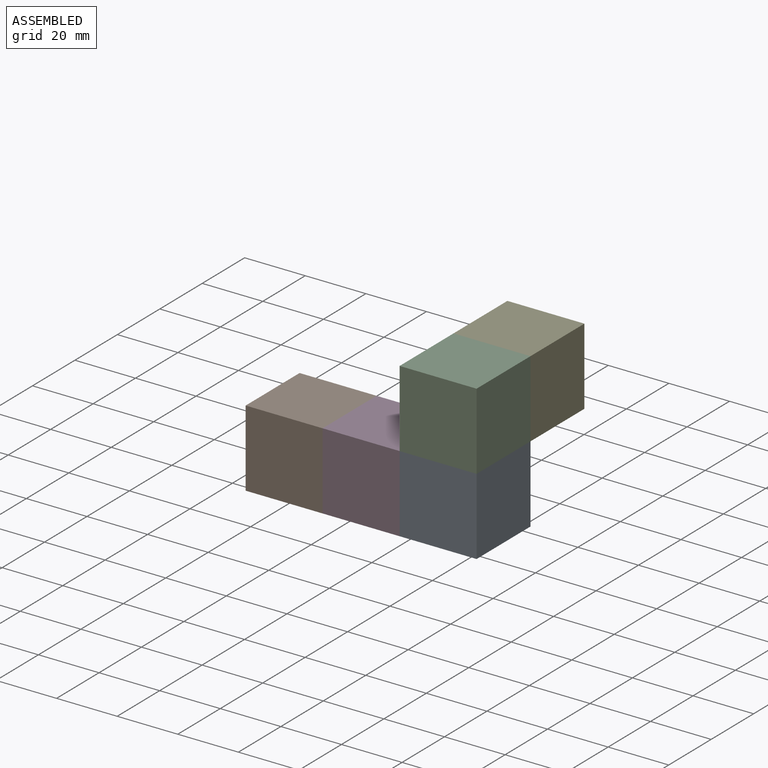
[diagram: assembled view]
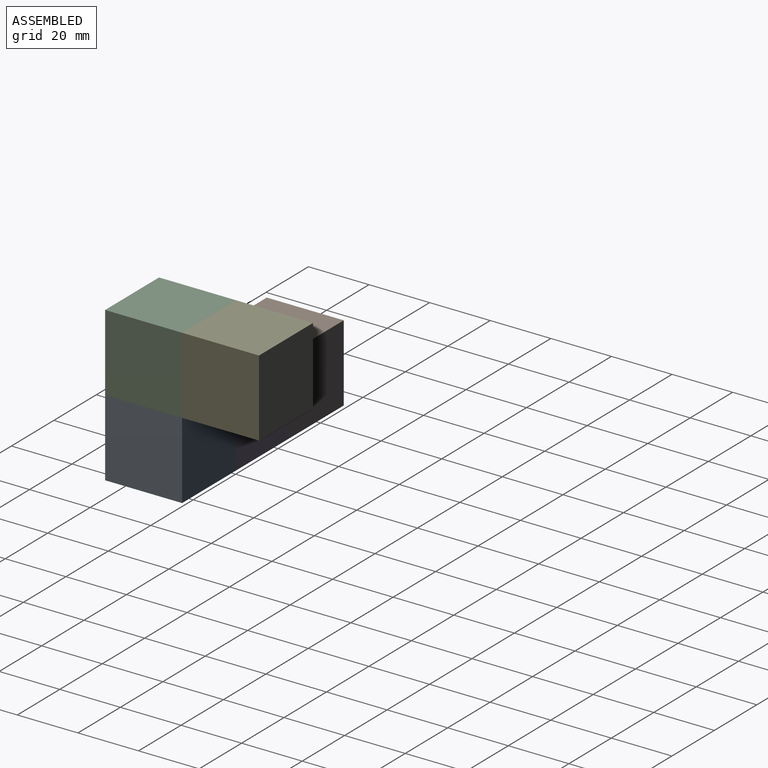
[diagram: assembled view, second angle]
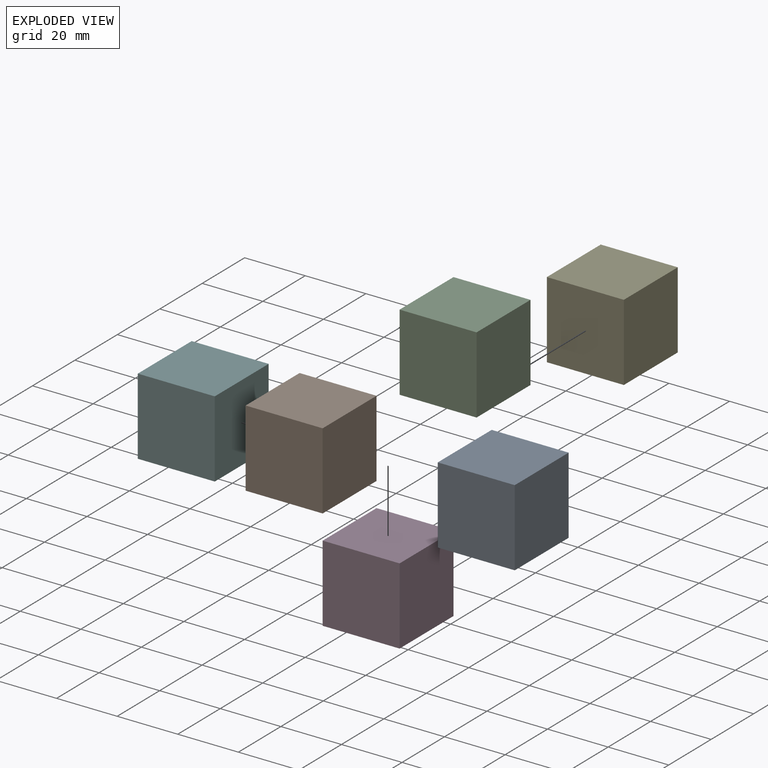
[diagram: exploded view]
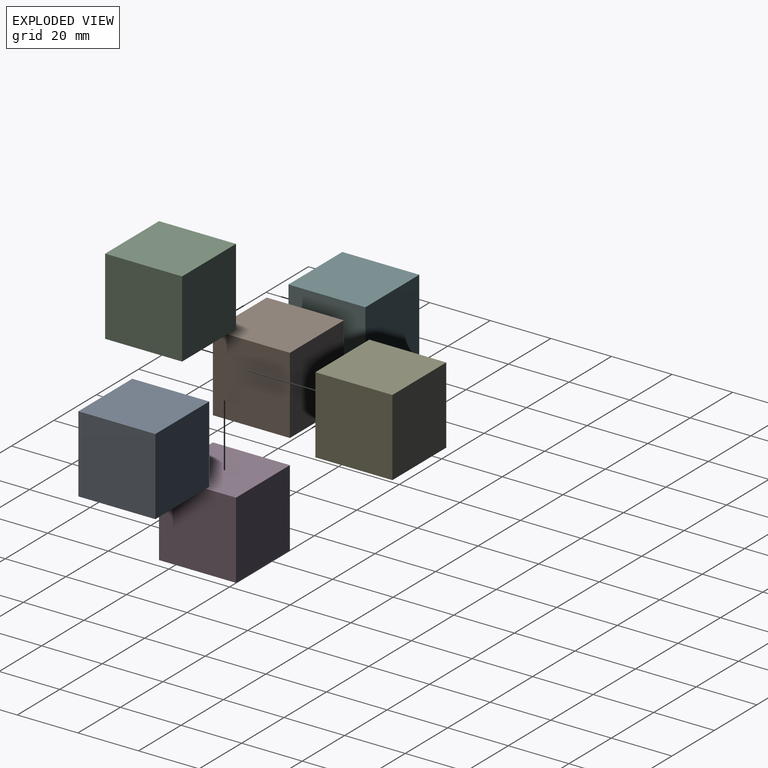
[diagram: exploded view, second angle]
ASSEMBLY  parts=6 mates=4
PART A: 6 faces, bbox 25.4x25.4x25.4 mm
  f0: plane 25.4x25.4mm, normal (-1,0,0), area 645.2mm2, adj f1,f3,f4,f5
  f1: plane 25.4x25.4mm, normal (0,0,-1), area 645.2mm2, adj f0,f2,f4,f5
  f2: plane 25.4x25.4mm, normal (1,0,0), area 645.2mm2, adj f1,f3,f4,f5
  f3: plane 25.4x25.4mm, normal (0,0,1), area 645.2mm2, adj f0,f2,f4,f5
  f4: plane 25.4x25.4mm, normal (0,-1,0), area 645.2mm2, adj f0,f1,f2,f3
  f5: plane 25.4x25.4mm, normal (0,1,0), area 645.2mm2, adj f0,f1,f2,f3
PART B: same geometry as A
PART C: same geometry as A
PART D: same geometry as A
PART E: same geometry as A
PART F: same geometry as A
PLACE A rot(axis=(0.71,0,-0.71),180deg) t=(85.04,-103.51,22.16)mm
PLACE B t=(8.84,-78.11,-3.24)mm
PLACE C rot(axis=(1,0,0),180deg) t=(59.64,-103.51,47.56)mm
PLACE D rot(axis=(0,1,0),180deg) t=(59.64,-78.11,22.16)mm
PLACE E rot(axis=(-0.58,0.58,-0.58),120deg) t=(59.64,-52.71,22.16)mm
PLACE F t=(8.84,-78.11,-3.24)mm
MATE fastened C.f3 <-> A.f0  axis (0,0,-1) through (72.34,-90.81,22.16)mm
MATE fastened A.f3 <-> D.f0  axis (-1,0,0) through (59.64,-90.81,9.46)mm
MATE fastened E.f2 <-> C.f4  axis (0,-1,0) through (72.34,-78.11,34.86)mm
MATE fastened D.f2 <-> F.f2  axis (-1,0,0) through (34.24,-90.81,9.46)mm
